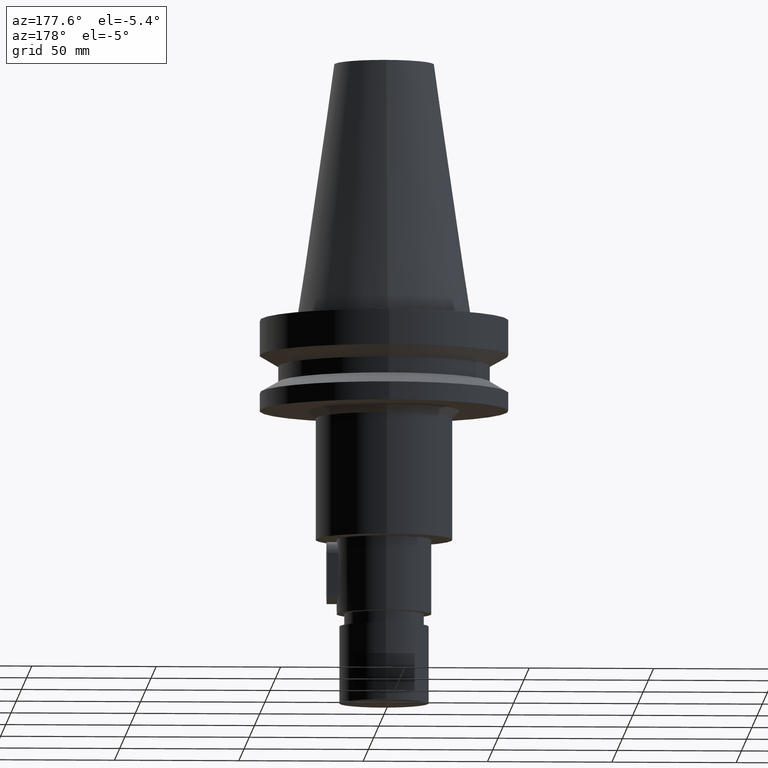
[diagram: clean part render]
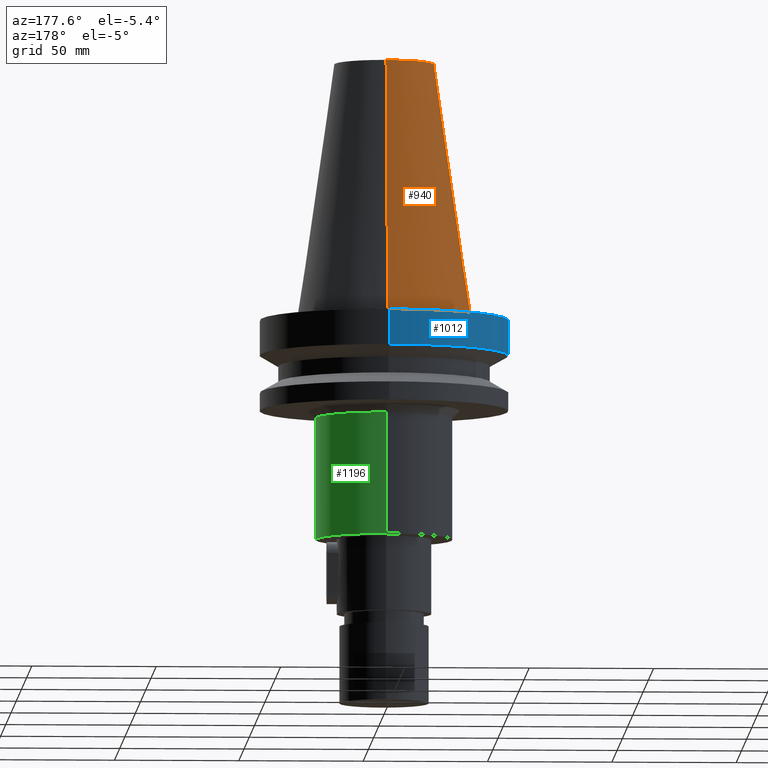
[diagram: same view with three faces highlighted in distinct colors, each labeled with its STEP entity id]
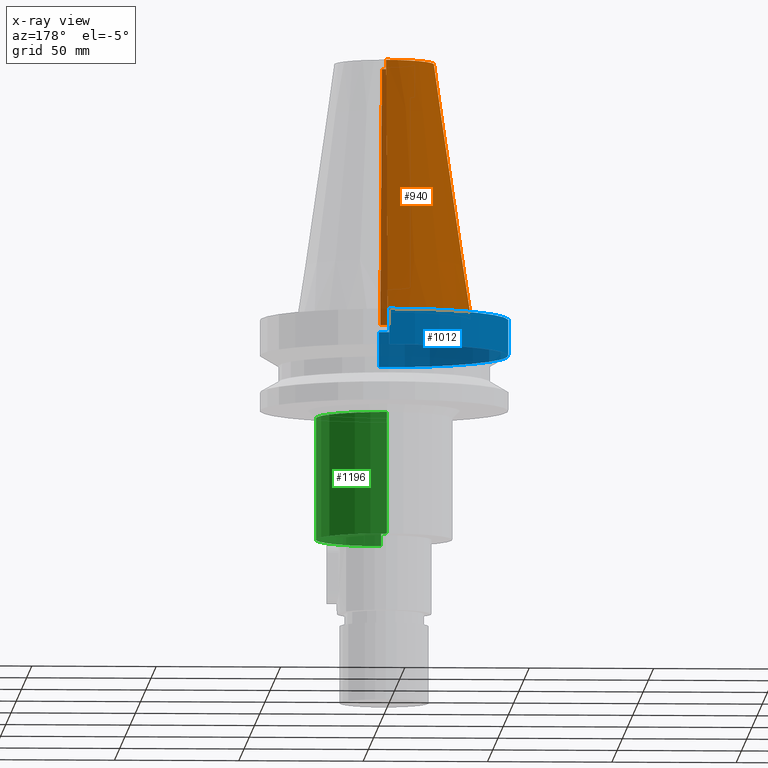
[diagram: x-ray of the same camera — body ghosted, the three highlighted faces saturated]
A machine part, auxiliary view with three faces highlighted in distinct colors.
The next image is the same camera in x-ray (body ghosted, the three faces saturated) — at least one of them is partly hidden behind the body in this view.
Their STEP definitions:

[orange] entity #940 — the highlighted conical surface has half-angle 8.297 deg.
#102=CARTESIAN_POINT('',(0.E0,1.847992019913E-14,1.018E2));
#103=DIRECTION('',(0.E0,0.E0,-1.E0));
#104=DIRECTION('',(0.E0,-1.E0,0.E0));
#105=AXIS2_PLACEMENT_3D('',#102,#103,#104);
#126=DIRECTION('',(0.E0,1.443043893539E-1,-9.895333461856E-1));
#127=VECTOR('',#126,1.028767755957E2);
#128=CARTESIAN_POINT('',(0.E0,2.007942971896E1,1.018E2));
#129=LINE('',#128,#127);
#141=DIRECTION('',(0.E0,-1.443043893539E-1,-9.895333461856E-1));
#142=VECTOR('',#141,1.028767755957E2);
#143=CARTESIAN_POINT('',(0.E0,-2.007942971896E1,1.018E2));
#144=LINE('',#143,#142);
#148=CARTESIAN_POINT('',(0.E0,1.847992019913E-14,3.979039320257E-13));
#149=DIRECTION('',(0.E0,0.E0,-1.E0));
#150=DIRECTION('',(0.E0,-1.E0,0.E0));
#151=AXIS2_PLACEMENT_3D('',#148,#149,#150);
#722=CARTESIAN_POINT('',(0.E0,2.007942971896E1,1.018E2));
#723=CARTESIAN_POINT('',(0.E0,-2.007942971896E1,1.018E2));
#724=VERTEX_POINT('',#722);
#725=VERTEX_POINT('',#723);
#726=CARTESIAN_POINT('',(0.E0,3.4925E1,4.547473508865E-13));
#727=VERTEX_POINT('',#726);
#728=CARTESIAN_POINT('',(0.E0,-3.4925E1,3.979039320257E-13));
#729=VERTEX_POINT('',#728);
#928=CARTESIAN_POINT('',(0.E0,1.847992019913E-14,5.09E1));
#929=DIRECTION('',(0.E0,0.E0,-1.E0));
#930=DIRECTION('',(0.E0,-1.E0,0.E0));
#931=AXIS2_PLACEMENT_3D('',#928,#929,#930);
#932=CONICAL_SURFACE('',#931,2.750221485948E1,8.297E0);
#933=ORIENTED_EDGE('',*,*,#918,.F.);
#934=ORIENTED_EDGE('',*,*,#904,.F.);
#935=ORIENTED_EDGE('',*,*,#922,.T.);
#937=ORIENTED_EDGE('',*,*,#936,.T.);
#938=EDGE_LOOP('',(#933,#934,#935,#937));
#939=FACE_OUTER_BOUND('',#938,.F.);
#106=CIRCLE('',#105,2.007942971896E1);
#152=CIRCLE('',#151,3.4925E1);
#904=EDGE_CURVE('',#725,#724,#106,.T.);
#918=EDGE_CURVE('',#724,#727,#129,.T.);
#922=EDGE_CURVE('',#725,#729,#144,.T.);
#936=EDGE_CURVE('',#729,#727,#152,.T.);
#940=ADVANCED_FACE('',(#939),#932,.T.);

[blue] entity #1012 — the highlighted cylindrical surface (partial cylindrical patch) has radius 50 mm, axis along (0, 0, -1).
#178=CARTESIAN_POINT('',(0.E0,2.629194213089E-14,-1.5E0));
#179=DIRECTION('',(0.E0,0.E0,-1.E0));
#180=DIRECTION('',(0.E0,-1.E0,0.E0));
#181=AXIS2_PLACEMENT_3D('',#178,#179,#180);
#202=DIRECTION('',(0.E0,-1.605441053570E-14,-1.E0));
#203=VECTOR('',#202,1.416269223573E1);
#204=CARTESIAN_POINT('',(0.E0,5.E1,-1.5E0));
#205=LINE('',#204,#203);
#209=DIRECTION('',(0.E0,1.555271020646E-14,-1.E0));
#210=VECTOR('',#209,1.416269223573E1);
#211=CARTESIAN_POINT('',(0.E0,-5.E1,-1.5E0));
#212=LINE('',#211,#210);
#216=CARTESIAN_POINT('',(0.E0,1.006319759054E-14,-1.566269223573E1));
#217=DIRECTION('',(0.E0,0.E0,1.E0));
#218=DIRECTION('',(0.E0,1.E0,0.E0));
#219=AXIS2_PLACEMENT_3D('',#216,#217,#218);
#734=CARTESIAN_POINT('',(0.E0,5.E1,-1.5E0));
#735=CARTESIAN_POINT('',(0.E0,-5.E1,-1.5E0));
#736=VERTEX_POINT('',#734);
#737=VERTEX_POINT('',#735);
#738=CARTESIAN_POINT('',(0.E0,5.E1,-1.566269223573E1));
#739=VERTEX_POINT('',#738);
#740=CARTESIAN_POINT('',(1.224646799147E-14,-5.E1,-1.566269223573E1));
#741=VERTEX_POINT('',#740);
#1000=CARTESIAN_POINT('',(0.E0,2.629194213089E-14,1.1469E2));
#1001=DIRECTION('',(0.E0,0.E0,-1.E0));
#1002=DIRECTION('',(0.E0,-1.E0,0.E0));
#1003=AXIS2_PLACEMENT_3D('',#1000,#1001,#1002);
#1004=CYLINDRICAL_SURFACE('',#1003,5.E1);
#1005=ORIENTED_EDGE('',*,*,#990,.F.);
#1006=ORIENTED_EDGE('',*,*,#976,.F.);
#1007=ORIENTED_EDGE('',*,*,#994,.T.);
#1009=ORIENTED_EDGE('',*,*,#1008,.F.);
#1010=EDGE_LOOP('',(#1005,#1006,#1007,#1009));
#1011=FACE_OUTER_BOUND('',#1010,.F.);
#182=CIRCLE('',#181,5.E1);
#220=CIRCLE('',#219,5.E1);
#976=EDGE_CURVE('',#737,#736,#182,.T.);
#990=EDGE_CURVE('',#736,#739,#205,.T.);
#994=EDGE_CURVE('',#737,#741,#212,.T.);
#1008=EDGE_CURVE('',#739,#741,#220,.T.);
#1012=ADVANCED_FACE('',(#1011),#1004,.T.);

[green] entity #1196 — the highlighted cylindrical surface (partial cylindrical patch) has radius 27.5 mm, axis along (0, 0, -1).
#375=CARTESIAN_POINT('',(0.E0,0.E0,-4.1E1));
#376=DIRECTION('',(0.E0,0.E0,-1.E0));
#377=DIRECTION('',(0.E0,1.E0,0.E0));
#378=AXIS2_PLACEMENT_3D('',#375,#376,#377);
#398=DIRECTION('',(0.E0,0.E0,-1.E0));
#399=VECTOR('',#398,4.9E1);
#400=CARTESIAN_POINT('',(0.E0,-2.75E1,-4.1E1));
#401=LINE('',#400,#399);
#405=DIRECTION('',(0.E0,0.E0,-1.E0));
#406=VECTOR('',#405,4.9E1);
#407=CARTESIAN_POINT('',(0.E0,2.75E1,-4.1E1));
#408=LINE('',#407,#406);
#420=CARTESIAN_POINT('',(0.E0,2.629194213089E-14,-9.E1));
#421=DIRECTION('',(0.E0,0.E0,1.E0));
#422=DIRECTION('',(0.E0,-1.E0,0.E0));
#423=AXIS2_PLACEMENT_3D('',#420,#421,#422);
#762=CARTESIAN_POINT('',(0.E0,2.75E1,-4.1E1));
#763=VERTEX_POINT('',#762);
#764=CARTESIAN_POINT('',(0.E0,-2.75E1,-4.1E1));
#765=VERTEX_POINT('',#764);
#766=CARTESIAN_POINT('',(0.E0,2.75E1,-9.E1));
#767=VERTEX_POINT('',#766);
#768=CARTESIAN_POINT('',(0.E0,-2.75E1,-9.E1));
#769=VERTEX_POINT('',#768);
#1184=CARTESIAN_POINT('',(0.E0,2.629194213089E-14,1.1469E2));
#1185=DIRECTION('',(0.E0,0.E0,-1.E0));
#1186=DIRECTION('',(0.E0,-1.E0,0.E0));
#1187=AXIS2_PLACEMENT_3D('',#1184,#1185,#1186);
#1188=CYLINDRICAL_SURFACE('',#1187,2.75E1);
#1189=ORIENTED_EDGE('',*,*,#1174,.T.);
#1191=ORIENTED_EDGE('',*,*,#1190,.F.);
#1192=ORIENTED_EDGE('',*,*,#1177,.F.);
#1193=ORIENTED_EDGE('',*,*,#1148,.F.);
#1194=EDGE_LOOP('',(#1189,#1191,#1192,#1193));
#1195=FACE_OUTER_BOUND('',#1194,.F.);
#379=CIRCLE('',#378,2.75E1);
#424=CIRCLE('',#423,2.75E1);
#1148=EDGE_CURVE('',#763,#765,#379,.T.);
#1174=EDGE_CURVE('',#763,#767,#408,.T.);
#1177=EDGE_CURVE('',#765,#769,#401,.T.);
#1190=EDGE_CURVE('',#769,#767,#424,.T.);
#1196=ADVANCED_FACE('',(#1195),#1188,.T.);